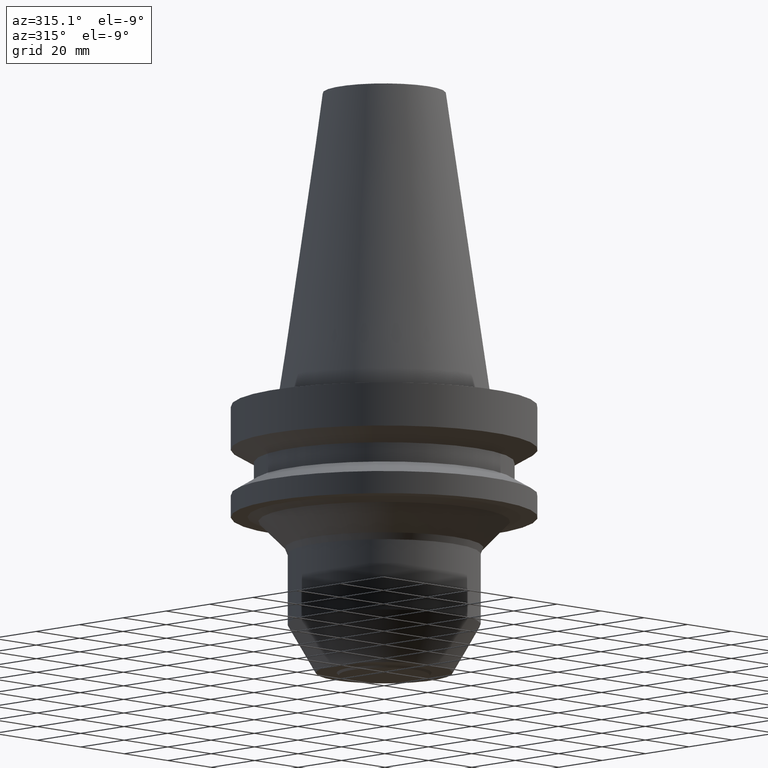
[diagram: clean part render]
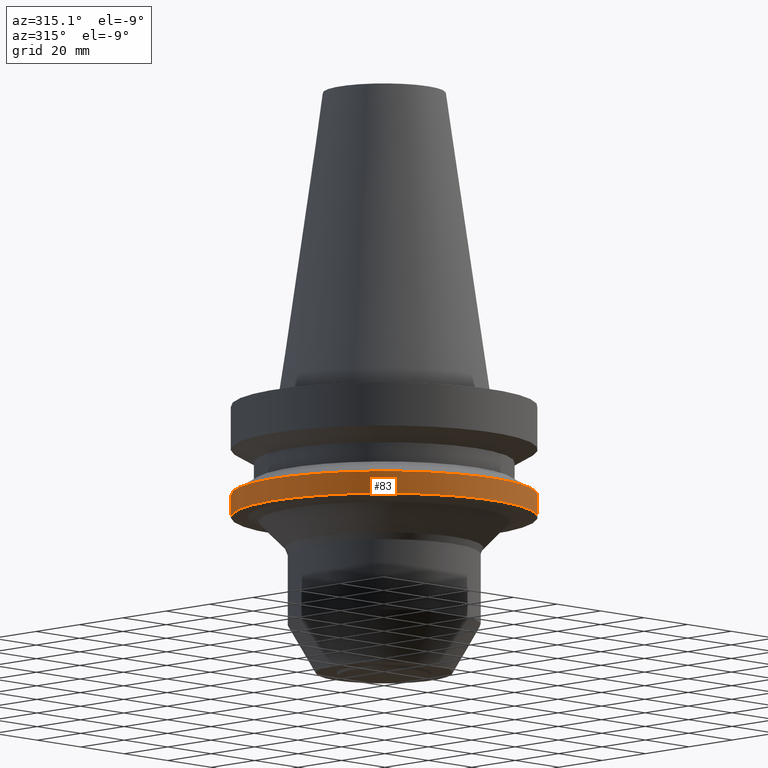
[diagram: same view with one face highlighted and labeled with its STEP entity id]
A machine part, auxiliary view. The second image highlights one B-rep face of the part: STEP entity #83.
In plain terms, the highlighted cylindrical surface (bore or boss wall) has radius 50 mm, axis along (-0, -0, 1).
Its self-contained STEP definition (entity closure, byte-faithful):
#83=ADVANCED_FACE('',(#117,#118),#119,.T.);
#117=FACE_BOUND('',#169,.T.);
#118=FACE_BOUND('',#170,.T.);
#119=CYLINDRICAL_SURFACE('',#171,50.0);
#169=EDGE_LOOP('',(#237));
#170=EDGE_LOOP('',(#238));
#171=AXIS2_PLACEMENT_3D('',#239,#240,#241);
#237=ORIENTED_EDGE('',*,*,#294,.F.);
#238=ORIENTED_EDGE('',*,*,#293,.T.);
#239=CARTESIAN_POINT('',(2.10333087753558E-015,7.75109355903775E-015,-34.35));
#240=DIRECTION('',(-6.12323399573677E-017,-6.14340833658324E-017,1.0));
#241=DIRECTION('',(-8.58890540840134E-033,1.0,6.14340833658324E-017));
#293=EDGE_CURVE('',#317,#317,#318,.T.);
#294=EDGE_CURVE('',#319,#319,#320,.T.);
#317=VERTEX_POINT('',#351);
#318=CIRCLE('',#352,50.0);
#319=VERTEX_POINT('',#353);
#320=CIRCLE('',#354,50.0);
#351=CARTESIAN_POINT('',(1.87983283669118E-015,50.0000000000001,-30.7));
#352=AXIS2_PLACEMENT_3D('',#392,#393,#394);
#353=CARTESIAN_POINT('',(2.32682891837997E-015,50.0000000000001,-38.0));
#354=AXIS2_PLACEMENT_3D('',#395,#396,#397);
#392=CARTESIAN_POINT('',(1.87983283669118E-015,7.52685915475228E-015,-30.7));
#393=DIRECTION('',(6.12323399573677E-017,6.14340833658324E-017,-1.0));
#394=DIRECTION('',(-8.58890540840134E-033,1.0,6.14340833658324E-017));
#395=CARTESIAN_POINT('',(2.32682891837997E-015,7.97532796332322E-015,-38.0));
#396=DIRECTION('',(6.12323399573677E-017,6.14340833658324E-017,-1.0));
#397=DIRECTION('',(-8.58890540840134E-033,1.0,6.14340833658324E-017));